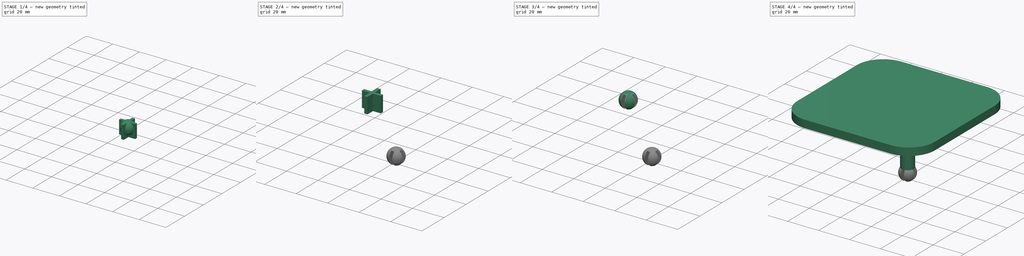
[diagram: build sequence overview — one tinted view per stage of 4, left to right]
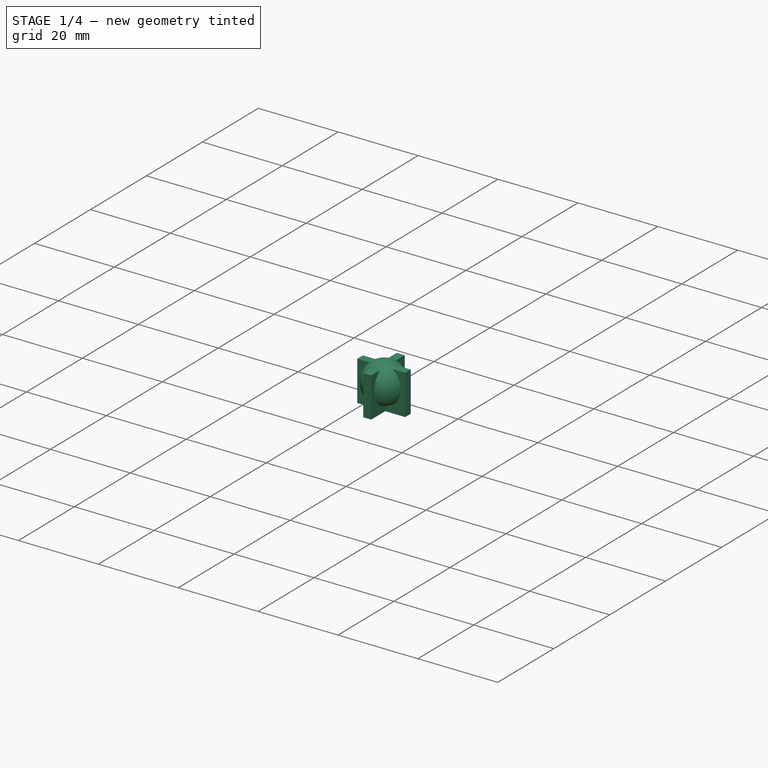
[diagram: stage 1 of 4 — iso view after this stage's code; geometry added in this stage tinted green]
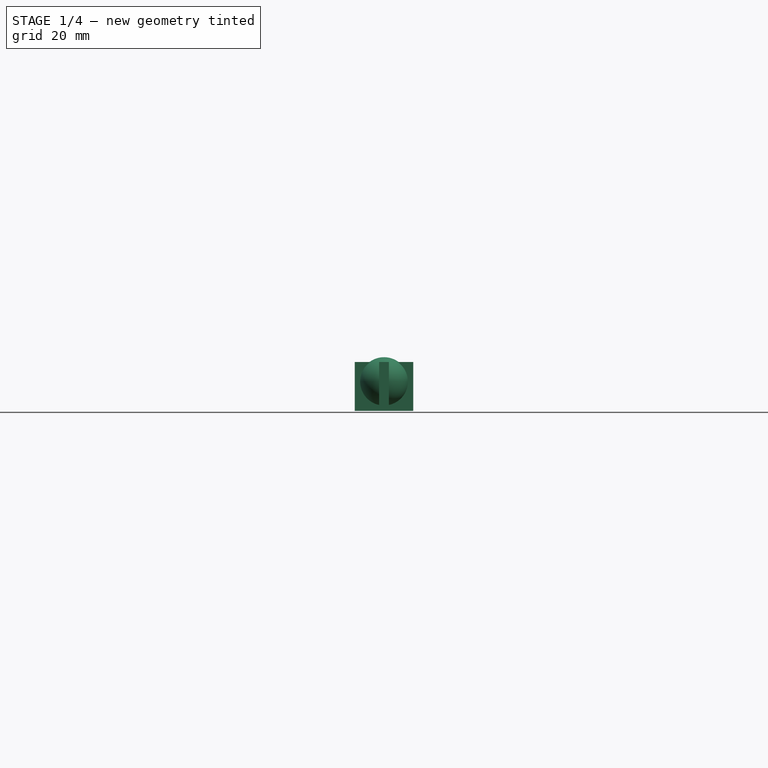
[diagram: stage 1 of 4 — front view after this stage's code; geometry added in this stage tinted green]
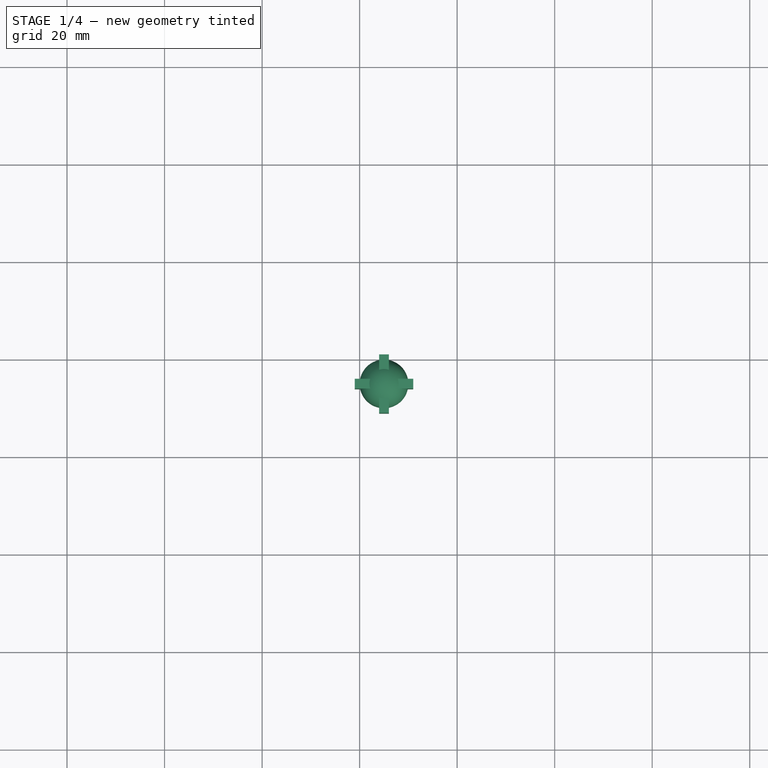
[diagram: stage 1 of 4 — top view after this stage's code; geometry added in this stage tinted green]
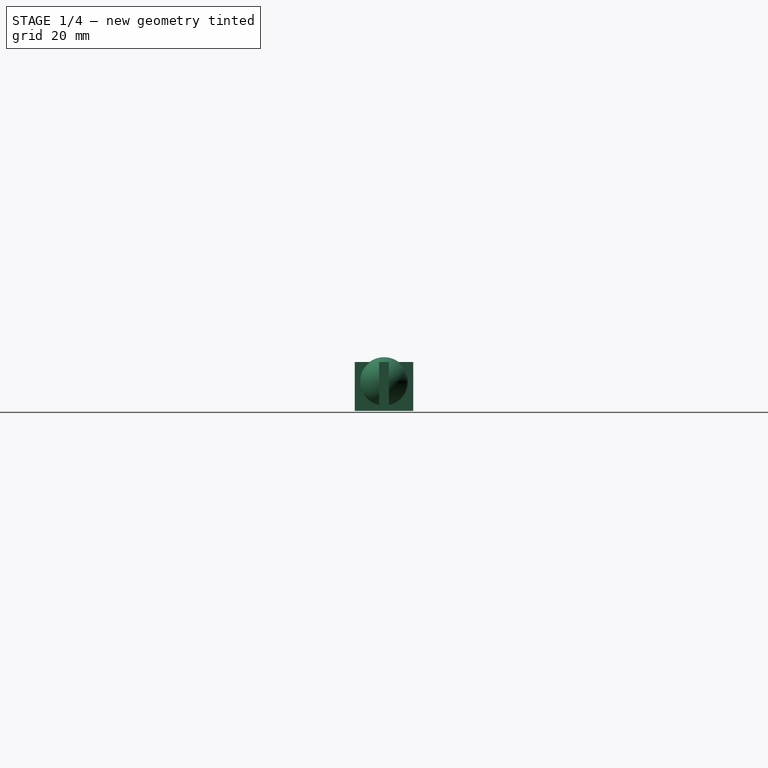
[diagram: stage 1 of 4 — right view after this stage's code; geometry added in this stage tinted green]
FCSTD DOCUMENT  (FreeCAD 0.18R16146 (Git))
Label: botón
License: All rights reserved
LicenseURL: http://en.wikipedia.org/wiki/All_rights_reserved
objects: Part::Box×4, Sketcher::SketchObject×3, PartDesign::Pad×3, Part::MultiFuse×3, Part::Sphere×2, Part::Cut×2, PartDesign::Body×1
note: 21 computed .brp shape members not serialized (recipe doc carries the construction recipe); baked Part::Feature solids carry a one-line shape summary decoded from their .brp

FEATURE [PartDesign::Body] Body
  Group = -> [Sketch,Pad,Sketch001,Pad001,Sketch002,Pad002]
  Origin = -> Origin
  Tip = -> Pad002
FEATURE [Part::Sphere] Sphere  label="Esfera"
  Angle1 = -90
  Angle2 = 90
  Angle3 = 360
  AttacherType = Attacher::AttachEngine3D
  Placement = pos=(25,-25,-19) rot=(0,0,1;0rad)
  Radius = 5
FEATURE [Part::Box] Box  label="Cubo"
  AttacherType = Attacher::AttachEngine3D
  Height = 10
  Length = 12
  Placement = pos=(19,-26,-25) rot=(0,0,1;0rad)
  Width = 2
FEATURE [Part::Box] Box003  label="Cubo003"
  AttacherType = Attacher::AttachEngine3D
  Height = 10
  Length = 2
  Placement = pos=(24,-31,-25) rot=(0,0,1;0rad)
  Width = 12
FEATURE [Part::MultiFuse] Fusion001
  Shapes = -> [Box,Box003]
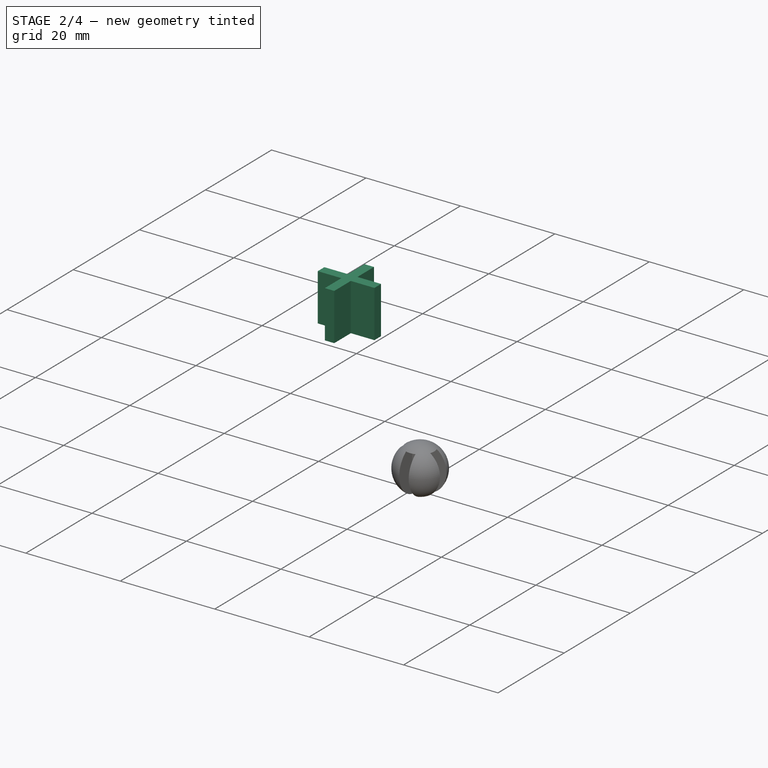
[diagram: stage 2 of 4 — iso view after this stage's code; geometry added in this stage tinted green]
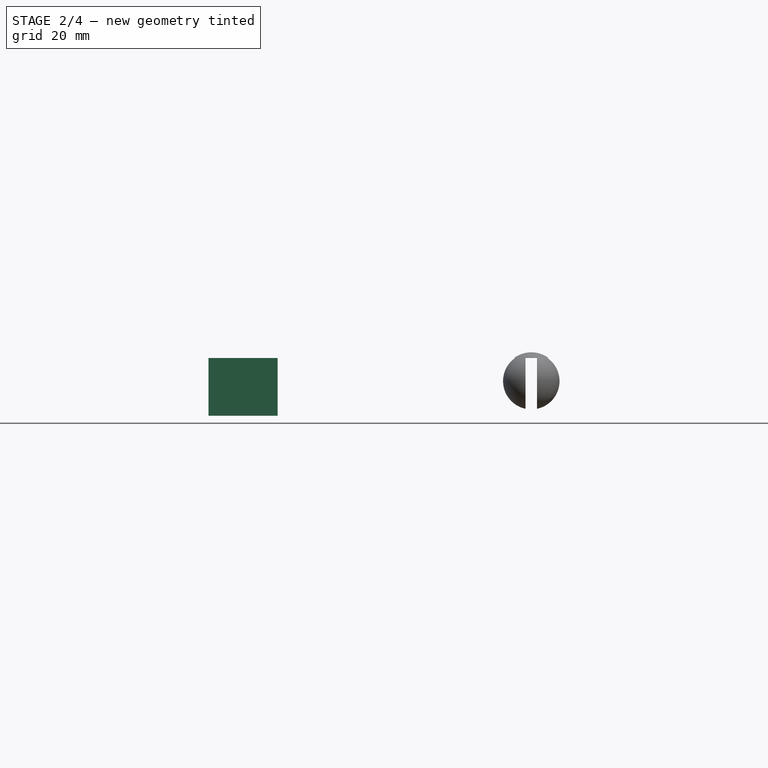
[diagram: stage 2 of 4 — front view after this stage's code; geometry added in this stage tinted green]
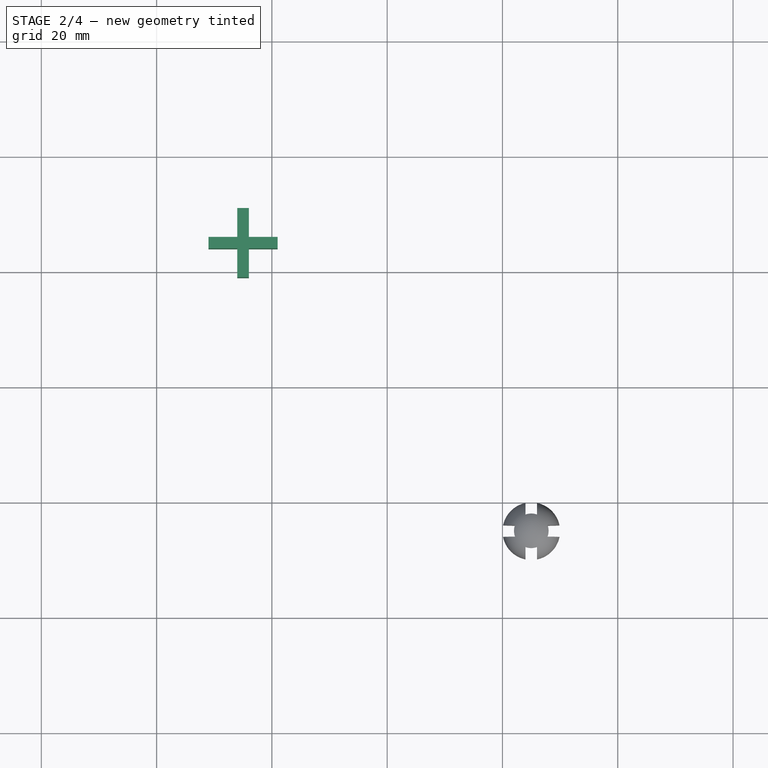
[diagram: stage 2 of 4 — top view after this stage's code; geometry added in this stage tinted green]
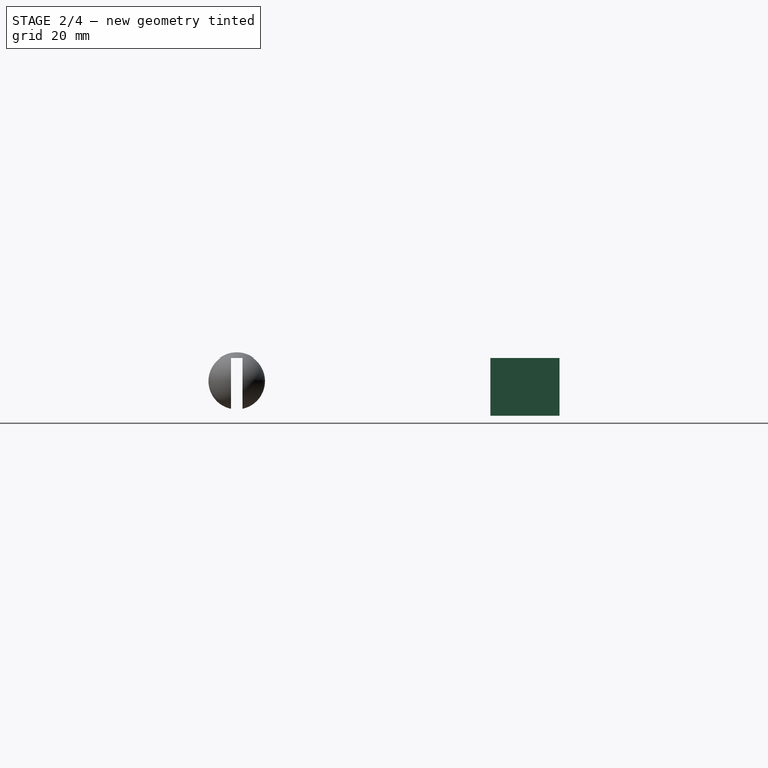
[diagram: stage 2 of 4 — right view after this stage's code; geometry added in this stage tinted green]
FEATURE [Part::Box] Box001  label="Cubo001"
  AttacherType = Attacher::AttachEngine3D
  Height = 10
  Length = 12
  Placement = pos=(-31,24,-25) rot=(0,0,1;0rad)
  Width = 2
FEATURE [Part::Box] Box002  label="Cubo002"
  AttacherType = Attacher::AttachEngine3D
  Height = 10
  Length = 2
  Placement = pos=(-26,19,-25) rot=(0,0,1;0rad)
  Width = 12
FEATURE [Part::Cut] Cut
  Base = -> Sphere
  Tool = -> Fusion001
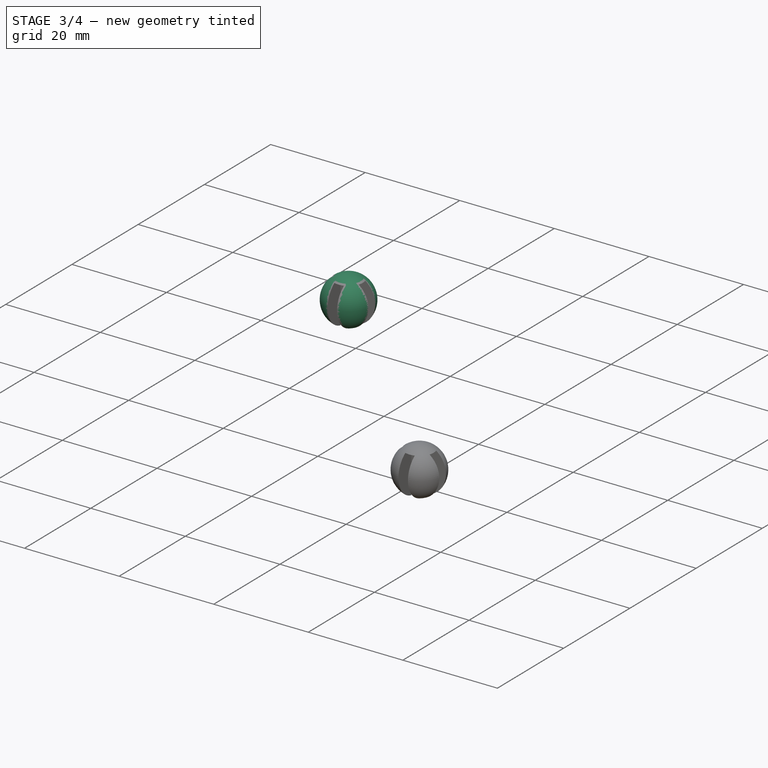
[diagram: stage 3 of 4 — iso view after this stage's code; geometry added in this stage tinted green]
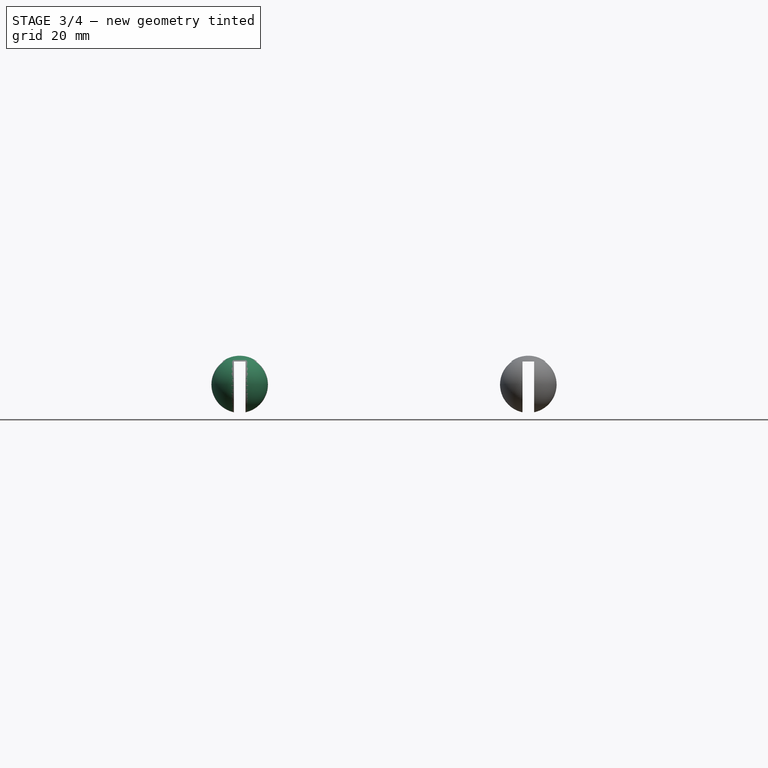
[diagram: stage 3 of 4 — front view after this stage's code; geometry added in this stage tinted green]
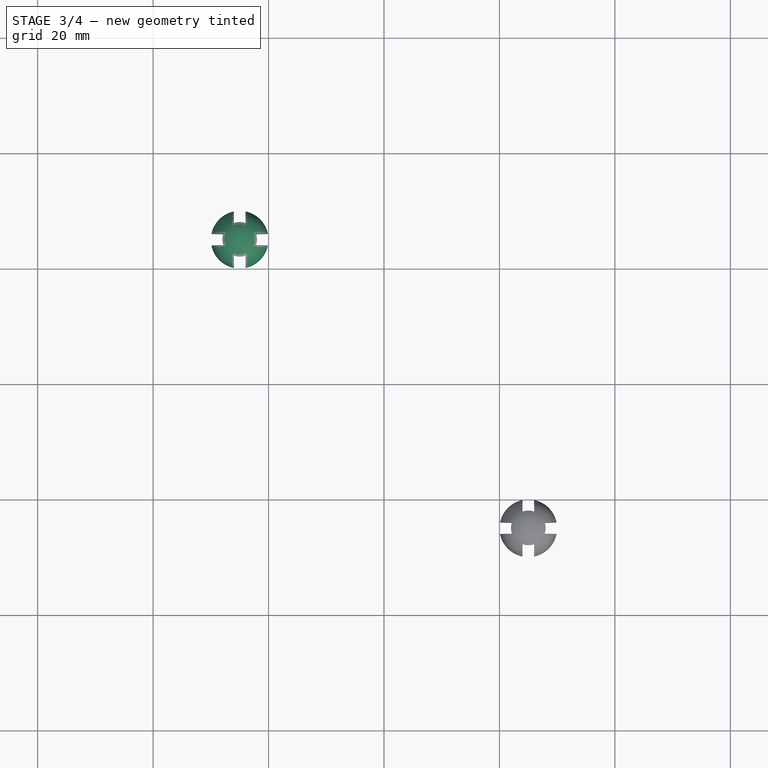
[diagram: stage 3 of 4 — top view after this stage's code; geometry added in this stage tinted green]
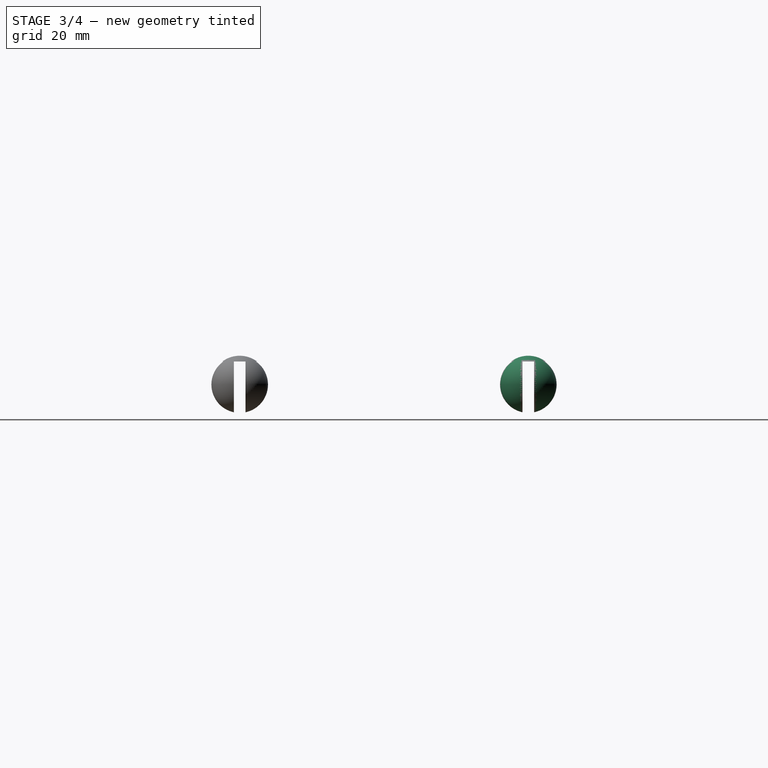
[diagram: stage 3 of 4 — right view after this stage's code; geometry added in this stage tinted green]
FEATURE [Part::Sphere] Sphere001  label="Esfera001"
  Angle1 = -90
  Angle2 = 90
  Angle3 = 360
  AttacherType = Attacher::AttachEngine3D
  Placement = pos=(-25,25,-19) rot=(0,0,1;0rad)
  Radius = 5
FEATURE [Part::MultiFuse] Fusion
  Shapes = -> [Box001,Box002]
FEATURE [Part::Cut] Cut001
  Base = -> Sphere001
  Tool = -> Fusion
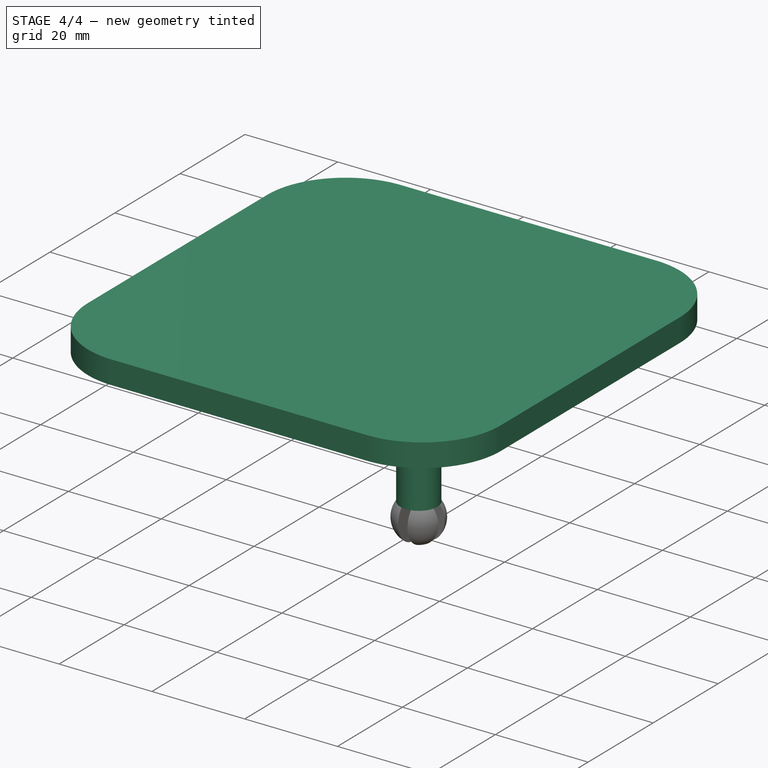
[diagram: stage 4 of 4 — iso view after this stage's code; geometry added in this stage tinted green]
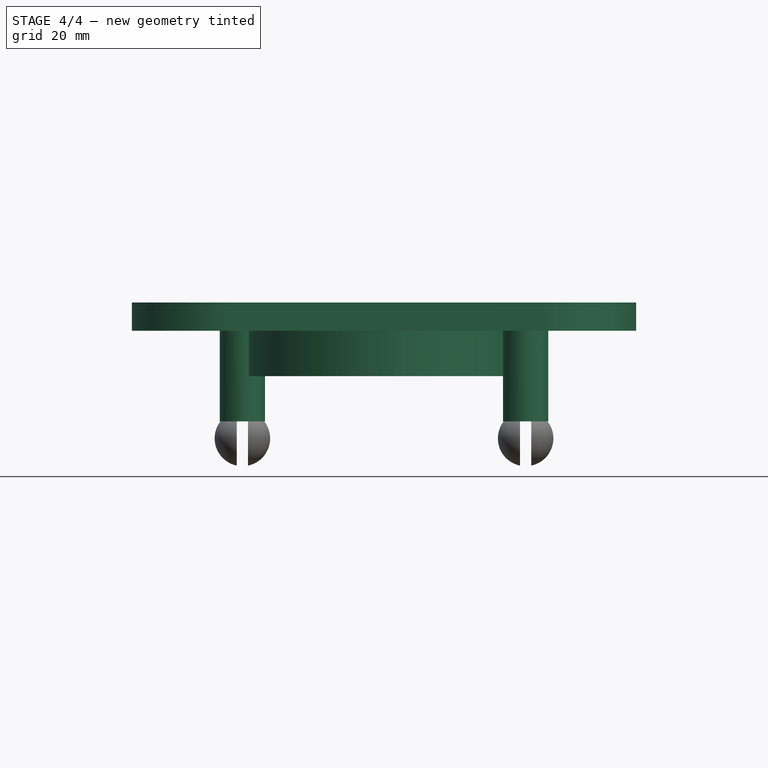
[diagram: stage 4 of 4 — front view after this stage's code; geometry added in this stage tinted green]
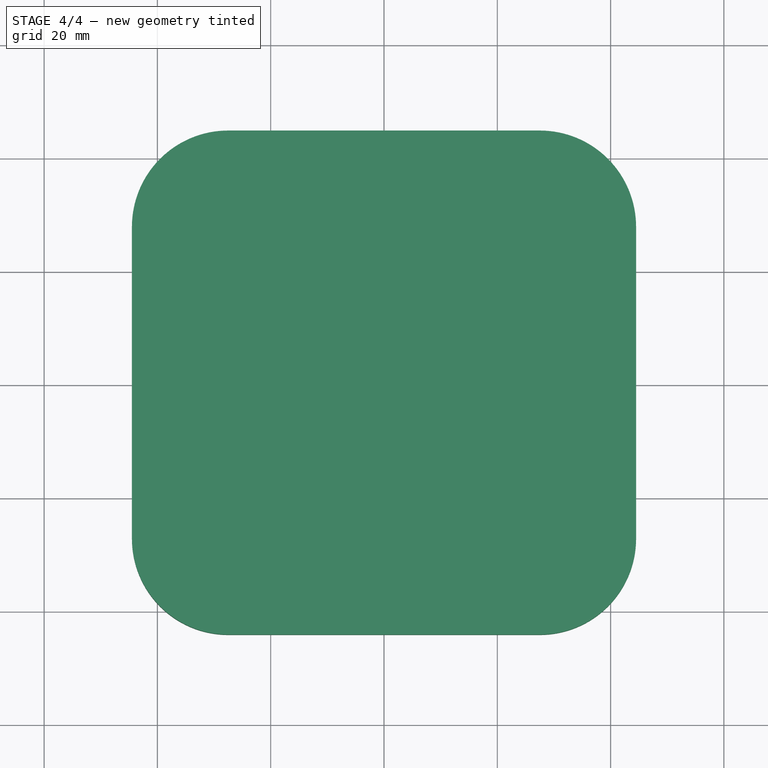
[diagram: stage 4 of 4 — top view after this stage's code; geometry added in this stage tinted green]
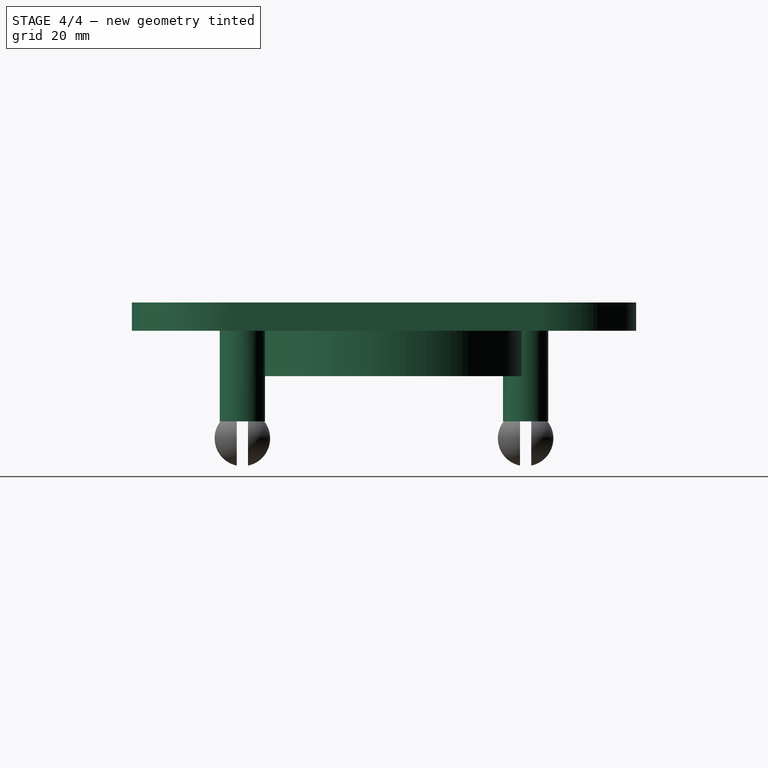
[diagram: stage 4 of 4 — right view after this stage's code; geometry added in this stage tinted green]
FEATURE [Sketcher::SketchObject] Sketch
  MapMode = 5
  Support = -> [XY_Plane]
  sketch-geometry (8):
    g0: LineSegment StartX=-27.5 StartY=44.5 StartZ=0 EndX=27.5 EndY=44.5 EndZ=0
    g1: LineSegment StartX=44.5 StartY=27.5 StartZ=0 EndX=44.5 EndY=-27.5 EndZ=0
    g2: LineSegment StartX=27.5 StartY=-44.5 StartZ=0 EndX=-27.5 EndY=-44.5 EndZ=0
    g3: LineSegment StartX=-44.5 StartY=-27.5 StartZ=0 EndX=-44.5 EndY=27.5 EndZ=0
    g4: ArcOfCircle CenterX=-27.5 CenterY=27.5 CenterZ=0 NormalX=0 NormalY=0 NormalZ=1 AngleXU=0 Radius=17 StartAngle=1.5708 EndAngle=3.14159
    g5: ArcOfCircle CenterX=27.5 CenterY=27.5 CenterZ=0 NormalX=0 NormalY=0 NormalZ=1 AngleXU=0 Radius=17 StartAngle=0 EndAngle=1.5708
    g6: ArcOfCircle CenterX=27.5 CenterY=-27.5 CenterZ=0 NormalX=0 NormalY=0 NormalZ=1 AngleXU=0 Radius=17 StartAngle=4.71239 EndAngle=6.28319
    g7: ArcOfCircle CenterX=-27.5 CenterY=-27.5 CenterZ=0 NormalX=0 NormalY=0 NormalZ=1 AngleXU=0 Radius=17 StartAngle=3.14159 EndAngle=4.71239
  constraints (18):
    c: Horizontal(g2)
    c: Vertical(g1)
    c: Tangent(g3,g4) = 1.5708
    c: Tangent(g0,g5) = 1.5708
    c: Tangent(g1,g5) = 1.5708
    c: Tangent(g1,g6) = 1.5708
    c: Tangent(g2,g6) = 1.5708
    c: Tangent(g2,g7) = 1.5708
    c: Tangent(g3,g7) = 1.5708
    c: Radius(g4) = 17
    c: Tangent(g4,g0) = 1.5708
    c: Radius(g5) = 17
    c: Radius(g6) = 17
    c: Radius(g7) = 17
    c: DistanceX(g0,g0) = 55
    c: DistanceY(g3,g3) = 55
    c: Symmetric(g0,g0,g-2)
    c: Symmetric(g3,g3,g-1)
FEATURE [PartDesign::Pad] Pad  label="Bloque"
  Length = 5
  Length2 = 100
  Profile = -> Sketch
  Type = 0
FEATURE [Sketcher::SketchObject] Sketch001
  MapMode = 5
  Placement = pos=(0,0,0) rot=(1,0,0;3.14159rad)
  Support = -> [Pad]
  sketch-geometry (1):
    g0: Circle CenterX=0.149781 CenterY=-0.32649 CenterZ=0 NormalX=0 NormalY=0 NormalZ=1 AngleXU=0 Radius=24
  constraints (1):
    c: Radius(g0) = 24
FEATURE [PartDesign::Pad] Pad001
  BaseFeature = -> Pad
  Length = 8
  Length2 = 100
  Profile = -> Sketch001
  Type = 0
FEATURE [Sketcher::SketchObject] Sketch002
  MapMode = 5
  Placement = pos=(0,0,0) rot=(1,0,0;3.14159rad)
  Support = -> [Pad001]
  sketch-geometry (2):
    g0: Circle CenterX=25 CenterY=25 CenterZ=0 NormalX=0 NormalY=0 NormalZ=1 AngleXU=0 Radius=4
    g1: Circle CenterX=-25 CenterY=-25 CenterZ=0 NormalX=0 NormalY=0 NormalZ=1 AngleXU=0 Radius=4
  constraints (6):
    c: DistanceX(g-1,g0) = 25
    c: DistanceY(g-1,g0) = 25
    c: Radius(g0) = 4
    c: DistanceX(g1,g-1) = 25
    c: DistanceY(g1,g-1) = 25
    c: Radius(g1) = 4
FEATURE [PartDesign::Pad] Pad002
  BaseFeature = -> Pad001
  Length = 16
  Length2 = 100
  Profile = -> Sketch002
  Type = 0
FEATURE [Part::MultiFuse] Fusion002
  Shapes = -> [Body,Cut001,Cut]
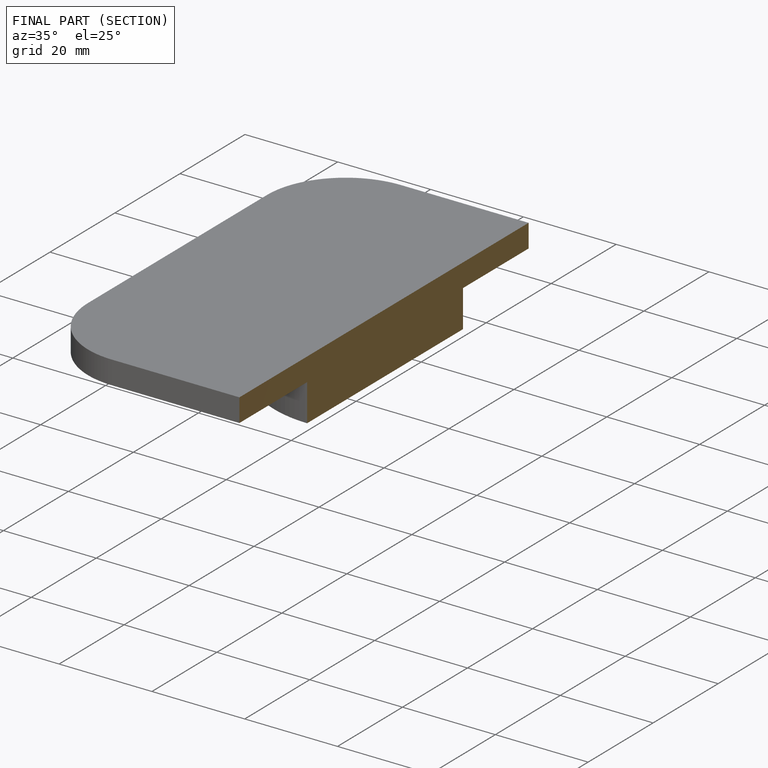
[diagram: finished part — half-section view (interior)]
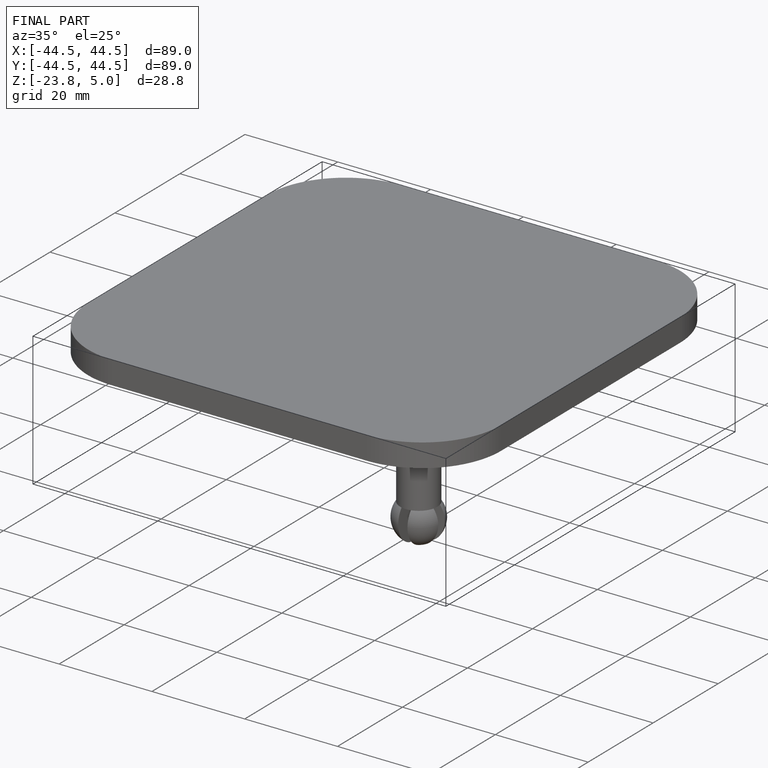
[diagram: finished part — iso view with bounding-box wireframe]
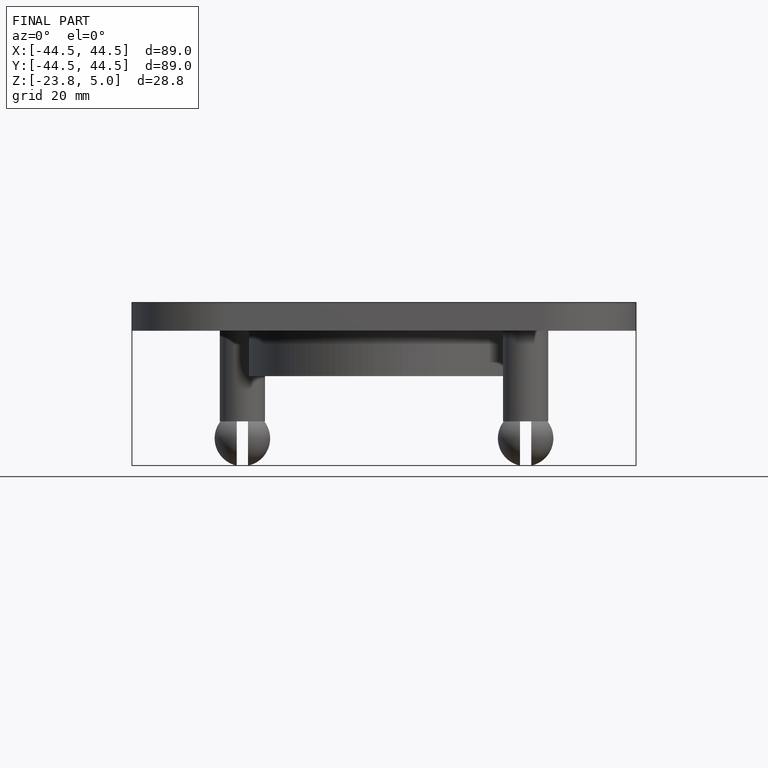
[diagram: finished part — front view with bounding-box wireframe]
